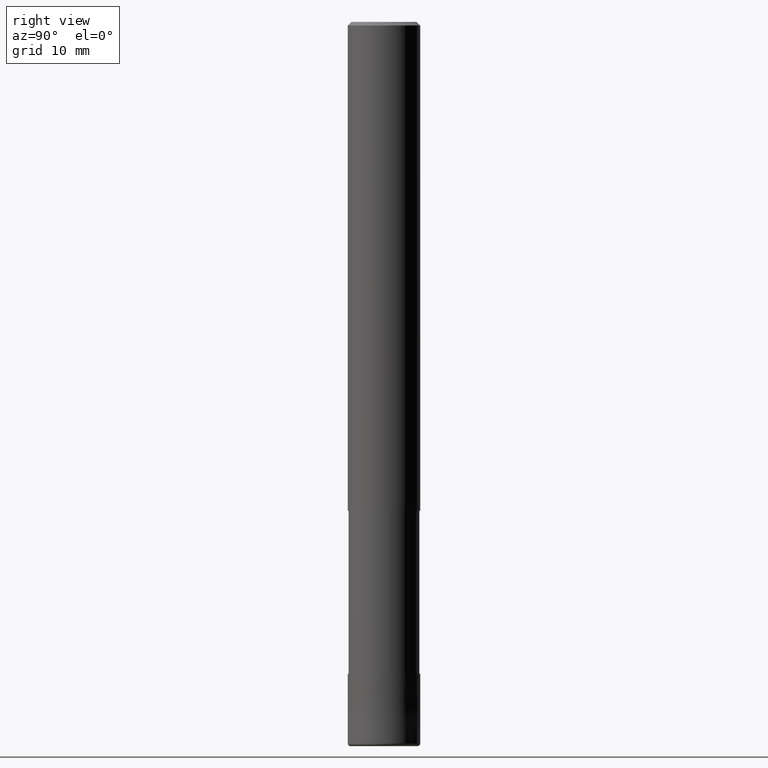
[diagram: clean part render]
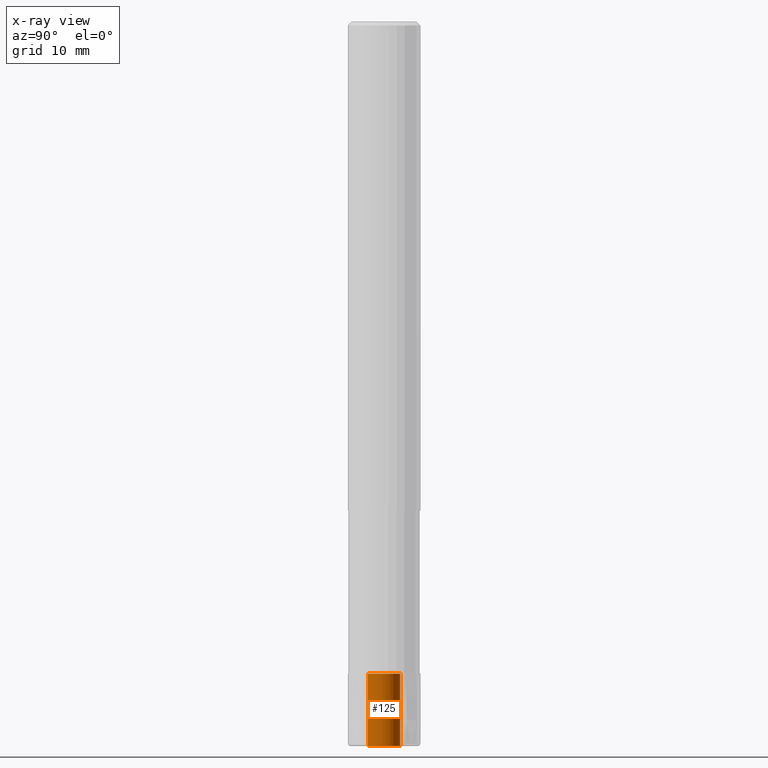
[diagram: x-ray — body ghosted, one internal face saturated and labeled with its STEP entity id]
A machine part, right view, then the same camera in x-ray: the body is ghosted and one INTERNAL B-rep face — a face not visible from any outside direction — is saturated and labeled: STEP entity #125.
In plain terms, the highlighted cylindrical surface (edge-blend (fillet) strip) has radius 1.8 mm, axis along (-0, -0, 1).
Its self-contained STEP definition (entity closure, byte-faithful):
#125=ADVANCED_FACE('',(#312),#313,.F.);
#153=EDGE_CURVE('',#273,#179,#345,.T.);
#165=EDGE_CURVE('',#179,#197,#360,.T.);
#179=VERTEX_POINT('',#376);
#197=VERTEX_POINT('',#396);
#223=VERTEX_POINT('',#424);
#225=EDGE_CURVE('',#197,#223,#426,.T.);
#261=EDGE_CURVE('',#273,#223,#469,.T.);
#273=VERTEX_POINT('',#483);
#312=FACE_OUTER_BOUND('',#519,.T.);
#313=CYLINDRICAL_SURFACE('',#520,1.8);
#345=LINE('',#560,#561);
#360=CIRCLE('',#580,1.8);
#376=CARTESIAN_POINT('',(0.0,1.8,-80.0));
#396=CARTESIAN_POINT('',(2.20429143688028E-016,-1.8,-80.0));
#424=CARTESIAN_POINT('',(2.20429143688028E-016,-1.8,-72.0));
#426=LINE('',#663,#664);
#469=CIRCLE('',#713,1.8);
#483=CARTESIAN_POINT('',(0.0,1.8,-72.0));
#519=EDGE_LOOP('',(#755,#756,#757,#758));
#520=AXIS2_PLACEMENT_3D('',#759,#760,#761);
#560=CARTESIAN_POINT('',(-2.20429143688028E-016,1.8,-76.0));
#561=VECTOR('',#802,1.0);
#580=AXIS2_PLACEMENT_3D('',#823,#824,#825);
#663=CARTESIAN_POINT('',(2.20429143688028E-016,-1.8,-76.0));
#664=VECTOR('',#898,1.0);
#713=AXIS2_PLACEMENT_3D('',#957,#958,#959);
#755=ORIENTED_EDGE('',*,*,#153,.T.);
#756=ORIENTED_EDGE('',*,*,#165,.T.);
#757=ORIENTED_EDGE('',*,*,#225,.T.);
#758=ORIENTED_EDGE('',*,*,#261,.F.);
#759=CARTESIAN_POINT('',(0.0,0.0,-76.0));
#760=DIRECTION('',(-0.0,-0.0,1.0));
#761=DIRECTION('',(0.0,1.0,0.0));
#802=DIRECTION('',(0.0,-0.0,-1.0));
#823=CARTESIAN_POINT('',(0.0,0.0,-80.0));
#824=DIRECTION('',(0.0,0.0,-1.0));
#825=DIRECTION('',(0.0,1.0,0.0));
#898=DIRECTION('',(0.0,-0.0,1.0));
#957=CARTESIAN_POINT('',(0.0,0.0,-72.0));
#958=DIRECTION('',(0.0,0.0,-1.0));
#959=DIRECTION('',(0.0,1.0,0.0));